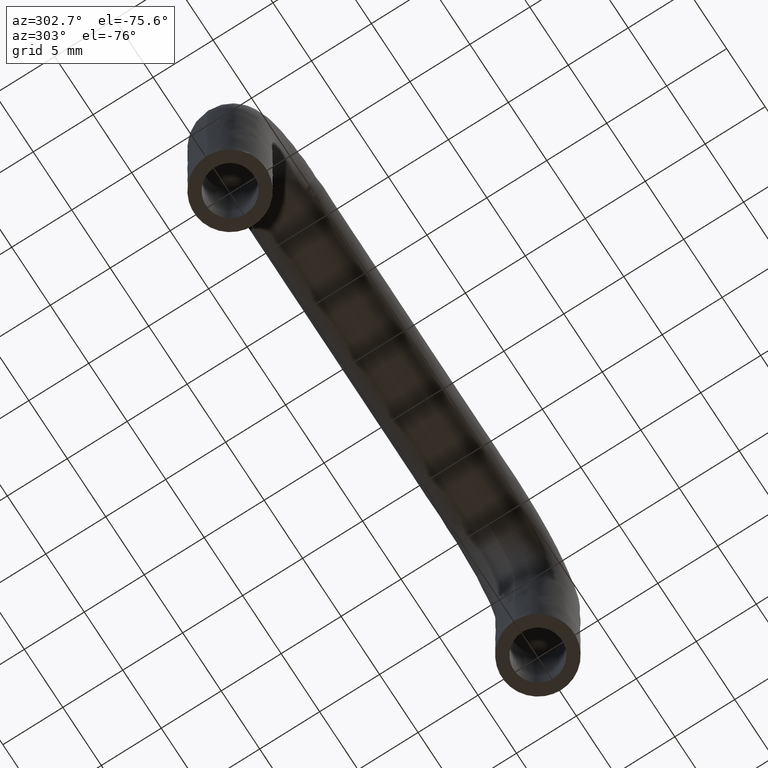
[diagram: clean part render]
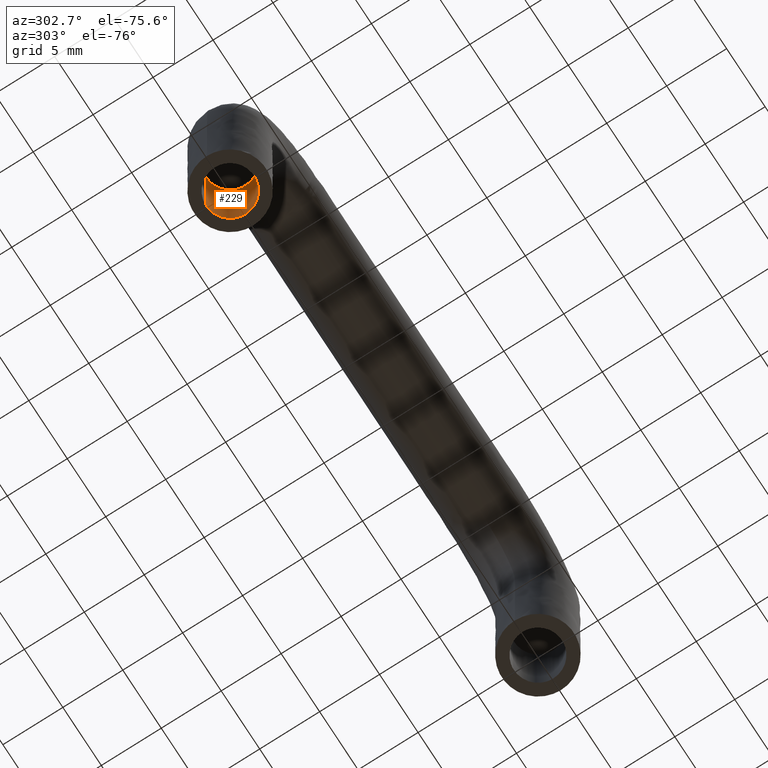
[diagram: same view with one face highlighted and labeled with its STEP entity id]
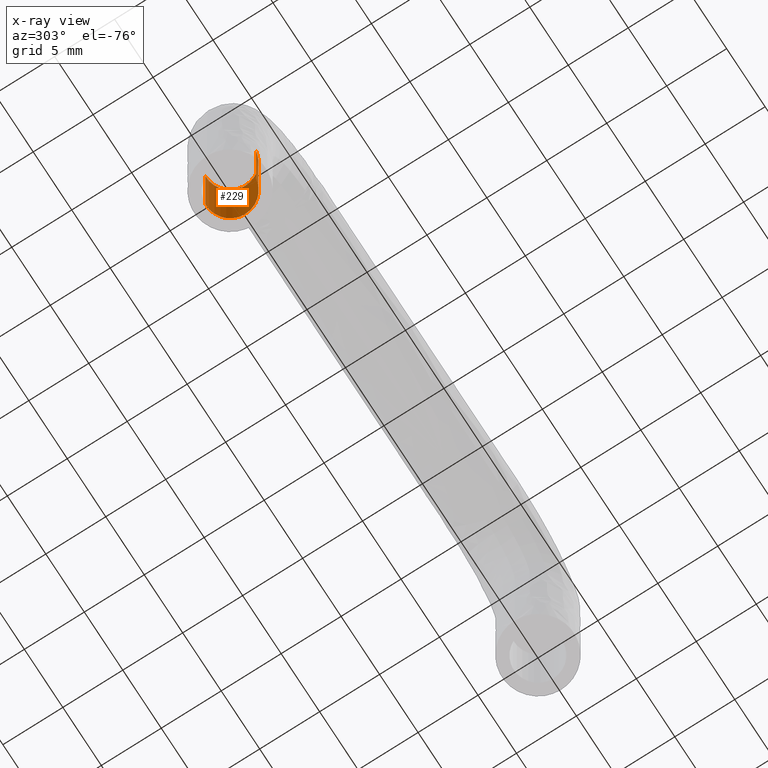
[diagram: x-ray of the same camera — body ghosted, the highlighted face saturated]
A machine part, auxiliary view. The second image highlights one B-rep face of the part: STEP entity #229.
The next image is the same camera in x-ray: the body ghosted, the highlighted face saturated — about 2% of this face is hidden behind the body in this view.
In plain terms, the highlighted face is a freeform B-spline surface patch.
Its self-contained STEP definition (entity closure, byte-faithful):
#66=CARTESIAN_POINT('',(0.236068469343232,-1.986019052723801,8.0));
#67=VERTEX_POINT('',#66);
#85=CARTESIAN_POINT('',(0.236068469343232,-1.986019052723801,4.259142E-017));
#86=VERTEX_POINT('',#85);
#87=CARTESIAN_POINT('',(0.236068469343232,-1.986019052723801,8.0));
#88=CARTESIAN_POINT('',(0.236068469343232,-1.986019052723801,4.259142E-017));
#89=QUASI_UNIFORM_CURVE('',1,(#87,#88),.UNSPECIFIED.,.F.,.U.);
#90=EDGE_CURVE('',#67,#86,#89,.T.);
#109=CARTESIAN_POINT('',(-0.122097079180703,1.996269596836946,4.163336E-017));
#110=VERTEX_POINT('',#109);
#124=CARTESIAN_POINT('',(-0.122097079180703,1.996269596836946,8.0));
#125=VERTEX_POINT('',#124);
#126=CARTESIAN_POINT('',(-0.122097079180703,1.996269596836946,8.0));
#127=CARTESIAN_POINT('',(-0.122097079180703,1.996269596836946,4.163336E-017));
#128=QUASI_UNIFORM_CURVE('',1,(#126,#127),.UNSPECIFIED.,.F.,.U.);
#129=EDGE_CURVE('',#125,#110,#128,.T.);
#147=CARTESIAN_POINT('',(-0.122097079069714,1.996269596843733,8.199999999999999));
#148=CARTESIAN_POINT('',(1.874172517774020,2.118366675913447,8.199999999999999));
#149=CARTESIAN_POINT('',(1.996269596843733,0.122097079069714,8.199999999999999));
#150=CARTESIAN_POINT('',(2.111572393465055,-1.763086981679002,8.199999999999999));
#151=CARTESIAN_POINT('',(0.236068469313517,-1.986019052727332,8.200000000000001));
#152=CARTESIAN_POINT('',(-0.122097079069714,1.996269596843733,-0.205000000000000));
#153=CARTESIAN_POINT('',(1.874172517774020,2.118366675913447,-0.205000000000000));
#154=CARTESIAN_POINT('',(1.996269596843733,0.122097079069714,-0.205000000000000));
#155=CARTESIAN_POINT('',(2.111572393465055,-1.763086981679002,-0.205000000000000));
#156=CARTESIAN_POINT('',(0.236068469313517,-1.986019052727332,-0.205000000000000));
#164=(BOUNDED_SURFACE()B_SPLINE_SURFACE(2,1,((#147,#152),(#148,#153),(#149,#154),(#150,#155),(#151,#156)),.UNSPECIFIED.,.F.,.F.,.U.)B_SPLINE_SURFACE_WITH_KNOTS((3,2,3),(2,2),(0.0,3.313708498984759,6.494868658010128),(0.0,8.404999999999999),.UNSPECIFIED.)GEOMETRIC_REPRESENTATION_ITEM()RATIONAL_B_SPLINE_SURFACE(((1.0,1.0),(0.707106781186548,0.707106781186548),(1.0,1.0),(0.718822509939086,0.718822509939086),(0.977505800795127,0.977505800795127)))REPRESENTATION_ITEM('')SURFACE());
#165=CARTESIAN_POINT('',(2.0,0.0,8.0));
#166=VERTEX_POINT('',#165);
#167=CARTESIAN_POINT('',(2.0,0.0,8.0));
#168=CARTESIAN_POINT('',(2.0,-1.776349051849207,8.0));
#169=CARTESIAN_POINT('',(0.236068469343232,-1.986019052723801,8.0));
#177=(BOUNDED_CURVE()B_SPLINE_CURVE(2,(#167,#168,#169),.UNSPECIFIED.,.F.,.U.)B_SPLINE_CURVE_WITH_KNOTS((3,3),(0.0,0.229562473510587),.UNSPECIFIED.)CURVE()GEOMETRIC_REPRESENTATION_ITEM()RATIONAL_B_SPLINE_CURVE((1.0,0.731050832858825,0.956026754177973))REPRESENTATION_ITEM(''));
#178=EDGE_CURVE('',#166,#67,#177,.T.);
#179=ORIENTED_EDGE('',*,*,#178,.F.);
#180=CARTESIAN_POINT('',(-0.122097079180703,1.996269596836945,8.0));
#181=CARTESIAN_POINT('',(-0.061105526708478,2.000000000000000,8.0));
#182=CARTESIAN_POINT('',(0.0,2.0,8.0));
#183=CARTESIAN_POINT('',(2.000000000000000,2.000000000000000,8.0));
#184=CARTESIAN_POINT('',(2.0,0.0,8.0));
#192=(BOUNDED_CURVE()B_SPLINE_CURVE(2,(#180,#181,#182,#183,#184),.UNSPECIFIED.,.F.,.U.)B_SPLINE_CURVE_WITH_KNOTS((3,2,3),(0.739332962222782,0.750000000000000,1.0),.UNSPECIFIED.)CURVE()GEOMETRIC_REPRESENTATION_ITEM()RATIONAL_B_SPLINE_CURVE((0.976072041632081,0.987502787880903,1.0,0.707106781186548,1.0))REPRESENTATION_ITEM(''));
#193=EDGE_CURVE('',#125,#166,#192,.T.);
#194=ORIENTED_EDGE('',*,*,#193,.F.);
#195=ORIENTED_EDGE('',*,*,#129,.T.);
#196=CARTESIAN_POINT('',(2.0,0.0,0.0));
#197=VERTEX_POINT('',#196);
#198=CARTESIAN_POINT('',(-0.122097079180703,1.996269596836945,4.163336E-017));
#199=CARTESIAN_POINT('',(-0.061105526708478,2.000000000000000,0.0));
#200=CARTESIAN_POINT('',(0.0,2.0,0.0));
#201=CARTESIAN_POINT('',(2.000000000000000,2.000000000000000,0.0));
#202=CARTESIAN_POINT('',(2.0,0.0,0.0));
#210=(BOUNDED_CURVE()B_SPLINE_CURVE(2,(#198,#199,#200,#201,#202),.UNSPECIFIED.,.F.,.U.)B_SPLINE_CURVE_WITH_KNOTS((3,2,3),(0.739332962222782,0.750000000000000,1.0),.UNSPECIFIED.)CURVE()GEOMETRIC_REPRESENTATION_ITEM()RATIONAL_B_SPLINE_CURVE((0.976072041632081,0.987502787880903,1.0,0.707106781186548,1.0))REPRESENTATION_ITEM(''));
#211=EDGE_CURVE('',#110,#197,#210,.T.);
#212=ORIENTED_EDGE('',*,*,#211,.T.);
#213=CARTESIAN_POINT('',(2.0,0.0,0.0));
#214=CARTESIAN_POINT('',(2.0,-1.776349051849207,0.0));
#215=CARTESIAN_POINT('',(0.236068469343232,-1.986019052723801,4.259142E-017));
#223=(BOUNDED_CURVE()B_SPLINE_CURVE(2,(#213,#214,#215),.UNSPECIFIED.,.F.,.U.)B_SPLINE_CURVE_WITH_KNOTS((3,3),(0.0,0.229562473510587),.UNSPECIFIED.)CURVE()GEOMETRIC_REPRESENTATION_ITEM()RATIONAL_B_SPLINE_CURVE((1.0,0.731050832858825,0.956026754177973))REPRESENTATION_ITEM(''));
#224=EDGE_CURVE('',#197,#86,#223,.T.);
#225=ORIENTED_EDGE('',*,*,#224,.T.);
#226=ORIENTED_EDGE('',*,*,#90,.F.);
#227=EDGE_LOOP('',(#179,#194,#195,#212,#225,#226));
#228=FACE_OUTER_BOUND('',#227,.T.);
#229=ADVANCED_FACE('',(#228),#164,.F.);